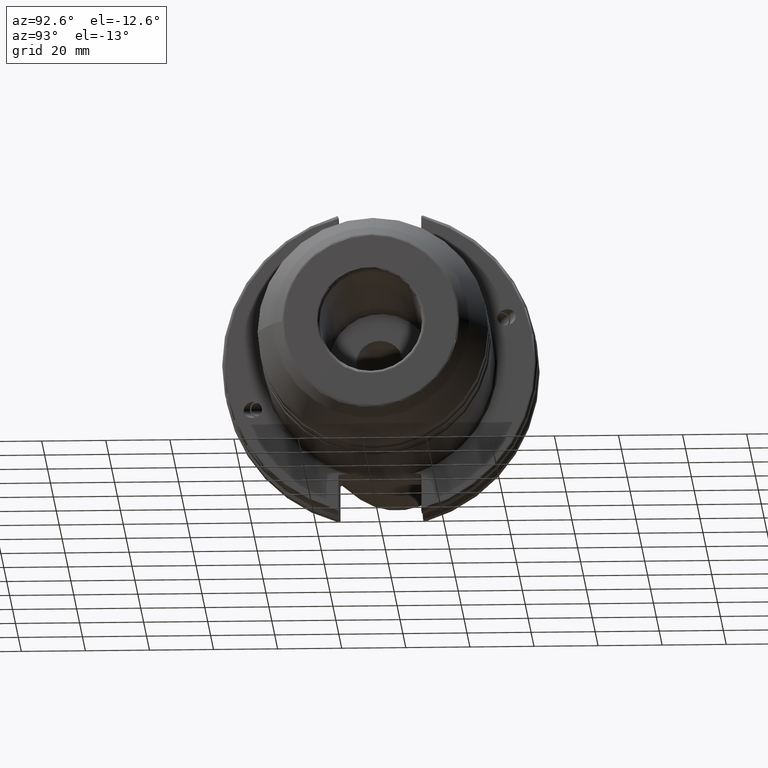
[diagram: clean part render]
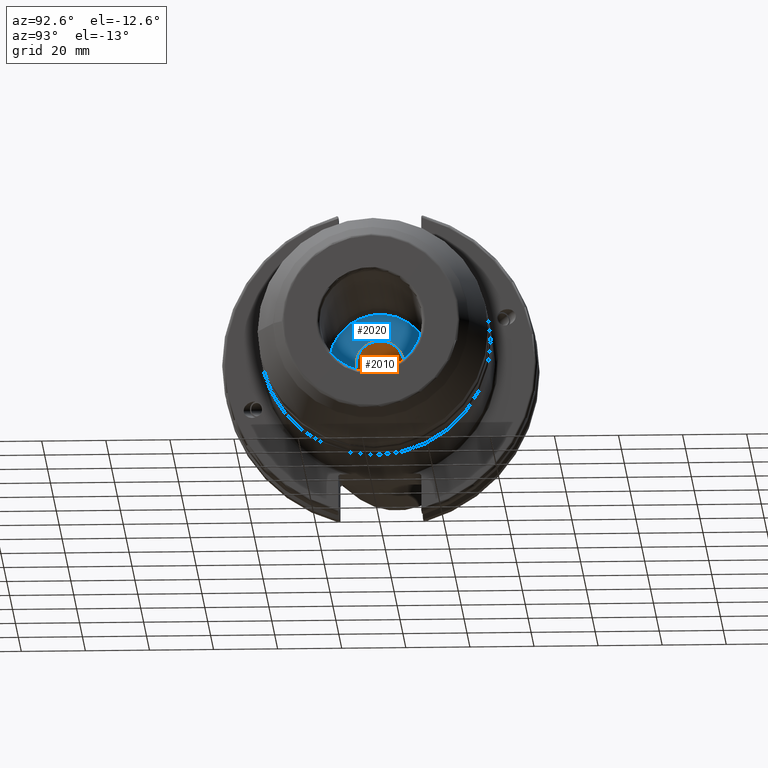
[diagram: same view with the hole feature highlighted: cylindrical wall and planar end face, labeled with their STEP entity ids]
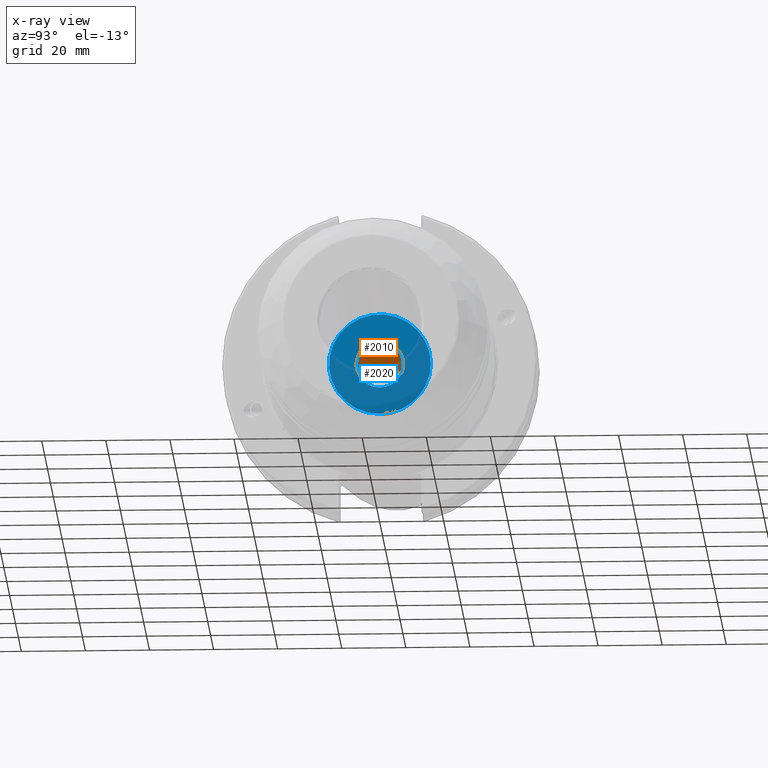
[diagram: x-ray of the same camera — body ghosted, the hole faces saturated]
A machine part, auxiliary view. The highlighted faces form one hole feature of diameter 14.9174 mm: the cylindrical wall (entity #2010, orange) and its adjacent planar end face (entity #2020, blue) — they share a circular edge in the B-rep.
The next image is the same camera in x-ray (body ghosted, the hole faces saturated) — the bore reads through the body.
Wall:
#161=FACE_OUTER_BOUND('',#264,.T.);
#264=EDGE_LOOP('',(#1318,#1319,#1320,#1321,#1322,#1323));
#383=LINE('',#3126,#482);
#482=VECTOR('',#2436,7.458734);
#581=CIRCLE('',#2134,7.458734);
#582=CIRCLE('',#2135,7.458734);
#583=CIRCLE('',#2136,7.458734);
#584=CIRCLE('',#2137,7.458734);
#753=VERTEX_POINT('',#3121);
#754=VERTEX_POINT('',#3122);
#755=VERTEX_POINT('',#3125);
#756=VERTEX_POINT('',#3127);
#988=EDGE_CURVE('',#753,#754,#581,.T.);
#989=EDGE_CURVE('',#754,#753,#582,.T.);
#990=EDGE_CURVE('',#754,#755,#383,.T.);
#991=EDGE_CURVE('',#756,#755,#583,.T.);
#992=EDGE_CURVE('',#755,#756,#584,.T.);
#1318=ORIENTED_EDGE('',*,*,#988,.F.);
#1319=ORIENTED_EDGE('',*,*,#989,.F.);
#1320=ORIENTED_EDGE('',*,*,#990,.T.);
#1321=ORIENTED_EDGE('',*,*,#991,.F.);
#1322=ORIENTED_EDGE('',*,*,#992,.F.);
#1323=ORIENTED_EDGE('',*,*,#990,.F.);
#1978=CYLINDRICAL_SURFACE('',#2133,7.458734);
#2010=ADVANCED_FACE('',(#161),#1978,.F.);
#2133=AXIS2_PLACEMENT_3D('',#3120,#2430,#2431);
#2134=AXIS2_PLACEMENT_3D('',#3123,#2432,#2433);
#2135=AXIS2_PLACEMENT_3D('',#3124,#2434,#2435);
#2136=AXIS2_PLACEMENT_3D('',#3128,#2437,#2438);
#2137=AXIS2_PLACEMENT_3D('',#3129,#2439,#2440);
#2430=DIRECTION('center_axis',(1.,0.,0.));
#2431=DIRECTION('ref_axis',(0.,0.,-1.));
#2432=DIRECTION('center_axis',(-1.,0.,0.));
#2433=DIRECTION('ref_axis',(0.,0.,-1.));
#2434=DIRECTION('center_axis',(-1.,0.,0.));
#2435=DIRECTION('ref_axis',(0.,0.,-1.));
#2436=DIRECTION('',(-1.,0.,0.));
#2437=DIRECTION('center_axis',(1.,0.,0.));
#2438=DIRECTION('ref_axis',(0.,0.,-1.));
#2439=DIRECTION('center_axis',(1.,0.,0.));
#2440=DIRECTION('ref_axis',(0.,0.,-1.));
#3120=CARTESIAN_POINT('Origin',(-210.028547590565,0.,0.));
#3121=CARTESIAN_POINT('',(18.0000000000004,0.,-7.458734));
#3122=CARTESIAN_POINT('',(18.0000000000004,-9.13431471879154E-16,7.458734));
#3123=CARTESIAN_POINT('Origin',(18.0000000000004,0.,0.));
#3124=CARTESIAN_POINT('Origin',(18.0000000000004,0.,0.));
#3125=CARTESIAN_POINT('',(-19.6224078738556,-9.13431471879154E-16,7.458734));
#3126=CARTESIAN_POINT('',(-210.028547590565,-9.13431471879154E-16,7.458734));
#3127=CARTESIAN_POINT('',(-19.6224078738556,-9.13431471879152E-16,-7.45873399999999));
#3128=CARTESIAN_POINT('Origin',(-19.6224078738556,0.,0.));
#3129=CARTESIAN_POINT('Origin',(-19.6224078738556,0.,0.));
End face:
#94=FACE_BOUND('',#276,.T.);
#110=PLANE('',#2172);
#171=FACE_OUTER_BOUND('',#275,.T.);
#275=EDGE_LOOP('',(#1379,#1380));
#276=EDGE_LOOP('',(#1381,#1382));
#581=CIRCLE('',#2134,7.458734);
#582=CIRCLE('',#2135,7.458734);
#608=CIRCLE('',#2170,15.9);
#609=CIRCLE('',#2171,15.9);
#753=VERTEX_POINT('',#3121);
#754=VERTEX_POINT('',#3122);
#781=VERTEX_POINT('',#3225);
#782=VERTEX_POINT('',#3227);
#988=EDGE_CURVE('',#753,#754,#581,.T.);
#989=EDGE_CURVE('',#754,#753,#582,.T.);
#1025=EDGE_CURVE('',#781,#782,#608,.T.);
#1026=EDGE_CURVE('',#782,#781,#609,.T.);
#1379=ORIENTED_EDGE('',*,*,#1026,.F.);
#1380=ORIENTED_EDGE('',*,*,#1025,.F.);
#1381=ORIENTED_EDGE('',*,*,#988,.T.);
#1382=ORIENTED_EDGE('',*,*,#989,.T.);
#2020=ADVANCED_FACE('',(#171,#94),#110,.F.);
#2134=AXIS2_PLACEMENT_3D('',#3123,#2432,#2433);
#2135=AXIS2_PLACEMENT_3D('',#3124,#2434,#2435);
#2170=AXIS2_PLACEMENT_3D('',#3228,#2511,#2512);
#2171=AXIS2_PLACEMENT_3D('',#3229,#2513,#2514);
#2172=AXIS2_PLACEMENT_3D('',#3230,#2515,#2516);
#2432=DIRECTION('center_axis',(-1.,0.,0.));
#2433=DIRECTION('ref_axis',(0.,0.,-1.));
#2434=DIRECTION('center_axis',(-1.,0.,0.));
#2435=DIRECTION('ref_axis',(0.,0.,-1.));
#2511=DIRECTION('center_axis',(-1.,0.,0.));
#2512=DIRECTION('ref_axis',(0.,0.,1.));
#2513=DIRECTION('center_axis',(-1.,0.,0.));
#2514=DIRECTION('ref_axis',(0.,0.,1.));
#2515=DIRECTION('center_axis',(-1.,0.,0.));
#2516=DIRECTION('ref_axis',(0.,0.,1.));
#3121=CARTESIAN_POINT('',(18.0000000000004,0.,-7.458734));
#3122=CARTESIAN_POINT('',(18.0000000000004,-9.13431471879154E-16,7.458734));
#3123=CARTESIAN_POINT('Origin',(18.0000000000004,0.,0.));
#3124=CARTESIAN_POINT('Origin',(18.0000000000004,0.,0.));
#3225=CARTESIAN_POINT('',(18.0000000000004,-1.9471884106443E-15,-15.9));
#3227=CARTESIAN_POINT('',(18.0000000000004,15.9,0.));
#3228=CARTESIAN_POINT('Origin',(18.0000000000004,0.,0.));
#3229=CARTESIAN_POINT('Origin',(18.0000000000004,0.,0.));
#3230=CARTESIAN_POINT('Origin',(18.0000000000004,1.77635683940025E-14,0.));